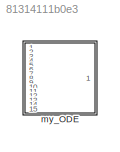
MODEL slx_81314111b0e3
KIND model
CONFIG AbsTol = auto
CONFIG EnableMultiTasking = off
CONFIG FixedStep = auto
CONFIG MaxStep = auto
CONFIG MinStep = auto
CONFIG RelTol = 1e-3
CONFIG SampleTimeConstraint = Unconstrained
CONFIG SolverName = VariableStepAuto
CONFIG StartTime = 0.0
CONFIG StopTime = 10.0
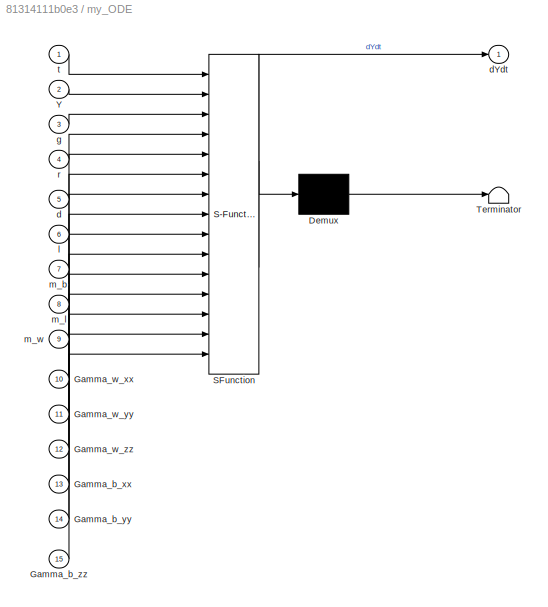
BLOCK [SubSystem] my_ODE
  ErrorFcn = Stateflow.Translate.translate
  PermitHierarchicalResolution = ExplicitOnly
  Ports = [15, 1]
  RequestExecContextInheritance = off
  SFBlockType = MATLAB Function
  TreatAsAtomicUnit = on
BLOCK [Demux] my_ODE/ Demux 
  Outputs = 1
  Ports = [1, 1]
BLOCK [S-Function] my_ODE/ SFunction 
  EnableBusSupport = off
  FunctionName = sf_sfun
  PortCounts = [15 2]
  Ports = [15, 2]
  SFcnIsStateOwnerBlock = off
  SFunctionDeploymentMode = off
  Tag = Stateflow S-Function 2
BLOCK [Terminator] my_ODE/ Terminator 
BLOCK [Inport] my_ODE/Gamma_b_xx
  Port = 13
BLOCK [Inport] my_ODE/Gamma_b_yy
  Port = 14
BLOCK [Inport] my_ODE/Gamma_b_zz
  Port = 15
BLOCK [Inport] my_ODE/Gamma_w_xx
  Port = 10
BLOCK [Inport] my_ODE/Gamma_w_yy
  Port = 11
BLOCK [Inport] my_ODE/Gamma_w_zz
  Port = 12
BLOCK [Inport] my_ODE/Y
  Port = 2
BLOCK [Inport] my_ODE/d
  Port = 5
BLOCK [Outport] my_ODE/dYdt
BLOCK [Inport] my_ODE/g
  Port = 3
BLOCK [Inport] my_ODE/l
  Port = 6
BLOCK [Inport] my_ODE/m_b
  Port = 7
BLOCK [Inport] my_ODE/m_l
  Port = 8
BLOCK [Inport] my_ODE/m_w
  Port = 9
BLOCK [Inport] my_ODE/r
  Port = 4
BLOCK [Inport] my_ODE/t
CHART my_ODE states=1 transitions=1
  STATE_LABEL 'eML_blk_kernel()'
  STATE_LABEL 'SCRIPT:\nfunction dYdt = my_ODE(t,Y,g,r,d,l,m_b,m_l,m_w,Gamma_w_xx,Gamma_w_yy,Gamma_w_zz,Gamma_b_xx,Gamma_b_yy,Gamma_b_zz)\n%#codegen\n\n%    This function was generated by the Symbolic Math Toolbox version 9.0.\n%    15-Jul-2022 11:26:44\n\nt2 = Gamma_w_yy.^2;\nt3 = Y(1);\nt4 = Y(2);\nt5 = Y(4);\nt6 = Y(6);\nt7 = d.^2;\nt8 = d.^3;\nt10 = l.^2;\nt11 = m_w.^2;\nt12 = m_w.^3;\nt13 = r.^2;\nt9 = t7.^2;\nt14 = t13.^2;\nt...<+3608ch>'
CHART  states=0 transitions=0
